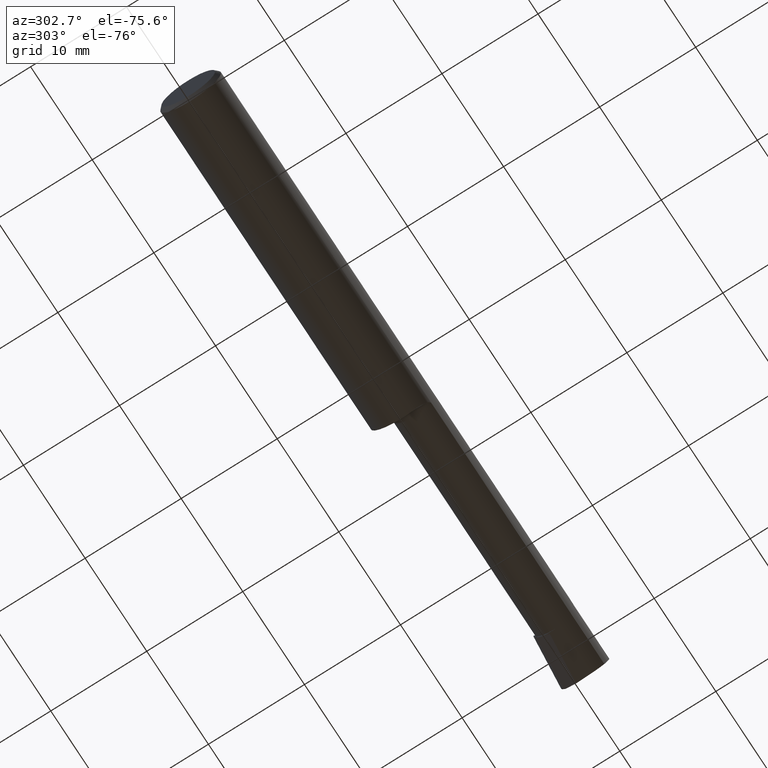
[diagram: clean part render]
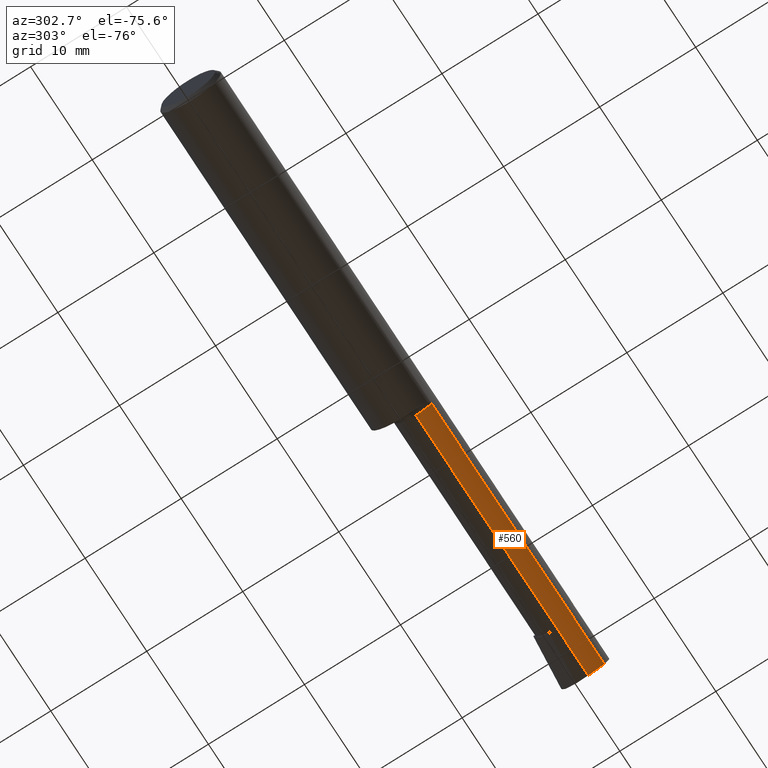
[diagram: same view with one face highlighted and labeled with its STEP entity id]
A machine part, auxiliary view. The second image highlights one B-rep face of the part: STEP entity #560.
In plain terms, the highlighted cylindrical surface (edge-blend (fillet) strip) has radius 2.2644 mm, axis along (-1, -0, -0).
Its self-contained STEP definition (entity closure, byte-faithful):
#12 = VERTEX_POINT ( 'NONE', #724 ) ;
#30 = EDGE_CURVE ( 'NONE', #684, #721, #809, .T. ) ;
#38 = DIRECTION ( 'NONE',  ( -1.000000000000000000, -0.000000000000000000, -0.000000000000000000 ) ) ;
#104 = CARTESIAN_POINT ( 'NONE',  ( 1.834999999999999964, -0.1088159090909092547, -0.06120964326573859193 ) ) ;
#127 = EDGE_LOOP ( 'NONE', ( #716, #464, #288, #779, #764 ) ) ;
#149 = DIRECTION ( 'NONE',  ( -1.000000000000000000, -0.000000000000000000, -0.000000000000000000 ) ) ;
#173 = CARTESIAN_POINT ( 'NONE',  ( 2.500000000000000000, -0.04399999999999999745, -0.08914999999999999314 ) ) ;
#180 = EDGE_CURVE ( 'NONE', #721, #438, #679, .T. ) ;
#193 = CARTESIAN_POINT ( 'NONE',  ( 0.000000000000000000, -0.04399999999999999745, 0.000000000000000000 ) ) ;
#203 = AXIS2_PLACEMENT_3D ( 'NONE', #193, #149, #287 ) ;
#220 = CARTESIAN_POINT ( 'NONE',  ( 2.487716879513912627, -0.1088159090909092547, -0.06120964326573859193 ) ) ;
#224 = CARTESIAN_POINT ( 'NONE',  ( 2.485330758133041495, -0.06888227343086728016, -0.08914999999999993763 ) ) ;
#232 = VECTOR ( 'NONE', #367, 39.37007874015748143 ) ;
#235 = DIRECTION ( 'NONE',  ( -1.000000000000000000, 5.691349986800549142E-18, -0.000000000000000000 ) ) ;
#249 = EDGE_CURVE ( 'NONE', #438, #556, #446, .T. ) ;
#287 = DIRECTION ( 'NONE',  ( 0.000000000000000000, 0.000000000000000000, 1.000000000000000000 ) ) ;
#288 = ORIENTED_EDGE ( 'NONE', *, *, #30, .F. ) ;
#312 = CYLINDRICAL_SURFACE ( 'NONE', #203, 0.08914999999999993763 ) ;
#317 = CARTESIAN_POINT ( 'NONE',  ( 1.385000000000000009, -0.04399999999999999745, -0.08914999999999988212 ) ) ;
#334 = VECTOR ( 'NONE', #619, 39.37007874015748143 ) ;
#363 = CARTESIAN_POINT ( 'NONE',  ( 0.000000000000000000, -0.04399999999999998357, -0.08914999999999993763 ) ) ;
#367 = DIRECTION ( 'NONE',  ( -1.000000000000000000, -0.000000000000000000, -0.000000000000000000 ) ) ;
#437 = AXIS2_PLACEMENT_3D ( 'NONE', #499, #38, #735 ) ;
#438 = VERTEX_POINT ( 'NONE', #798 ) ;
#441 = CARTESIAN_POINT ( 'NONE',  ( 2.485982323393565174, -0.04399999999999999745, -0.08914999999999999314 ) ) ;
#446 = LINE ( 'NONE', #363, #334 ) ;
#464 = ORIENTED_EDGE ( 'NONE', *, *, #180, .F. ) ;
#481 = CARTESIAN_POINT ( 'NONE',  ( 2.487716879513912627, -0.1088159090909092547, -0.06120964326573859193 ) ) ;
#499 = CARTESIAN_POINT ( 'NONE',  ( 1.385000000000000009, -0.04399999999999999745, 0.000000000000000000 ) ) ;
#556 = VERTEX_POINT ( 'NONE', #317 ) ;
#560 = ADVANCED_FACE ( 'NONE', ( #715 ), #312, .T. ) ;
#590 = VECTOR ( 'NONE', #235, 39.37007874015748143 ) ;
#619 = DIRECTION ( 'NONE',  ( -1.000000000000000000, -0.000000000000000000, -0.000000000000000000 ) ) ;
#675 = CARTESIAN_POINT ( 'NONE',  ( 2.485942244485980002, -0.09173194857106686806, -0.07930013314426062609 ) ) ;
#679 = LINE ( 'NONE', #173, #590 ) ;
#684 = VERTEX_POINT ( 'NONE', #481 ) ;
#715 = FACE_OUTER_BOUND ( 'NONE', #127, .T. ) ;
#716 = ORIENTED_EDGE ( 'NONE', *, *, #249, .F. ) ;
#721 = VERTEX_POINT ( 'NONE', #441 ) ;
#724 = CARTESIAN_POINT ( 'NONE',  ( 1.385000000000000009, -0.1088159090909091020, -0.06120964326573864051 ) ) ;
#735 = DIRECTION ( 'NONE',  ( 0.000000000000000000, 0.000000000000000000, 1.000000000000000000 ) ) ;
#739 = EDGE_CURVE ( 'NONE', #684, #12, #742, .T. ) ;
#742 = LINE ( 'NONE', #104, #232 ) ;
#750 = CIRCLE ( 'NONE', #437, 0.08914999999999988212 ) ;
#764 = ORIENTED_EDGE ( 'NONE', *, *, #799, .F. ) ;
#779 = ORIENTED_EDGE ( 'NONE', *, *, #739, .T. ) ;
#784 = CARTESIAN_POINT ( 'NONE',  ( 2.485982323393565174, -0.04399999999999999745, -0.08914999999999999314 ) ) ;
#798 = CARTESIAN_POINT ( 'NONE',  ( 2.285000000000000142, -0.04399999999999999745, -0.08914999999999999314 ) ) ;
#799 = EDGE_CURVE ( 'NONE', #556, #12, #750, .T. ) ;
#809 =( BOUNDED_CURVE ( )  B_SPLINE_CURVE ( 3, ( #220, #675, #224, #784 ),
 .UNSPECIFIED., .F., .F. ) 
 B_SPLINE_CURVE_WITH_KNOTS ( ( 4, 4 ),
 ( 5.679229040429019548, 6.493234751459755927 ),
 .UNSPECIFIED. ) 
 CURVE ( )  GEOMETRIC_REPRESENTATION_ITEM ( )  RATIONAL_B_SPLINE_CURVE ( ( 1.000000000000000000, 0.9455409277260479195, 0.9455409277260479195, 1.000000000000000000 ) ) 
 REPRESENTATION_ITEM ( '' )  );